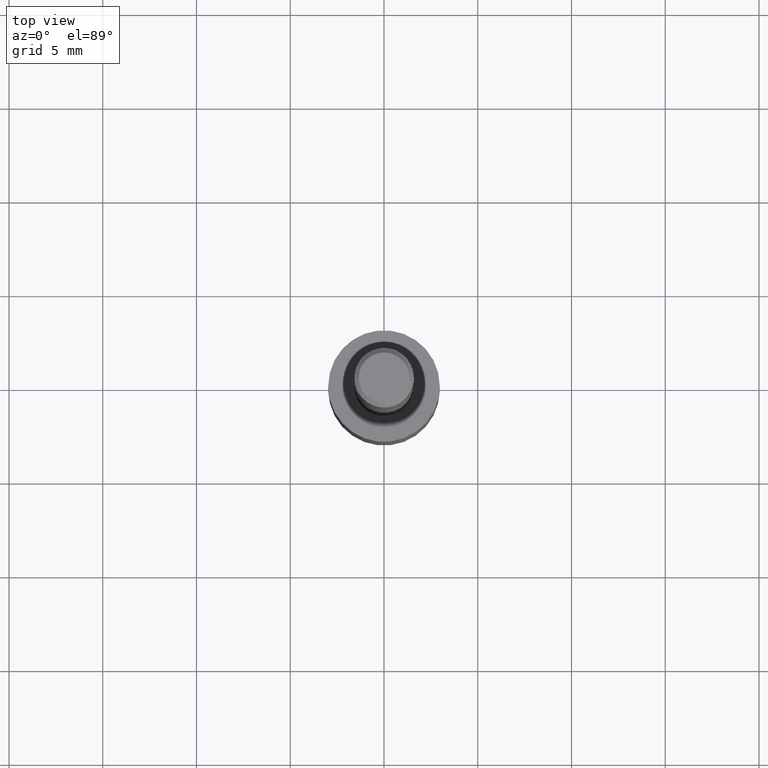
[diagram: clean part render]
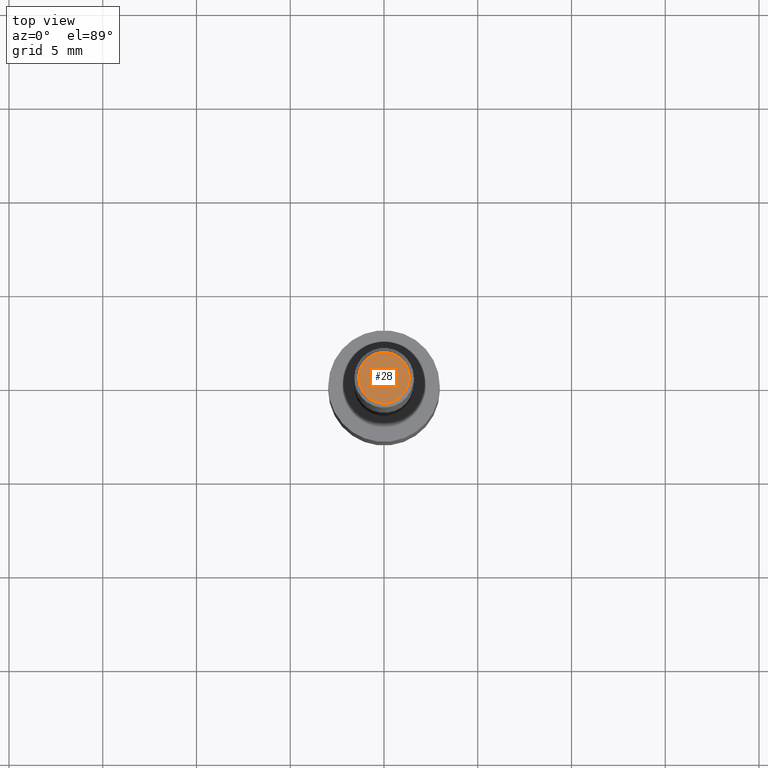
[diagram: same view with one face highlighted and labeled with its STEP entity id]
A machine part, top view. The second image highlights one B-rep face of the part: STEP entity #28.
In plain terms, the highlighted planar face has unit normal (0, -0, -1).
Its self-contained STEP definition (entity closure, byte-faithful):
#28 = ADVANCED_FACE ( 'NONE', ( #247 ), #198, .F. ) ;
#34 = DIRECTION ( 'NONE',  ( -2.445468806185136597E-29, 3.491481338843145583E-15, 1.000000000000000000 ) ) ;
#53 = CARTESIAN_POINT ( 'NONE',  ( -7.487088864773345706E-50, 1.068957861474247695E-35, 3.061616997868395197E-21 ) ) ;
#65 = DIRECTION ( 'NONE',  ( 2.438088387897960049E-29, -3.491481338843145188E-15, -1.000000000000000000 ) ) ;
#69 = CIRCLE ( 'NONE', #237, 0.05312499999999999861 ) ;
#79 = CIRCLE ( 'NONE', #312, 0.05312499999999999861 ) ;
#82 = EDGE_CURVE ( 'NONE', #135, #132, #69, .T. ) ;
#84 = DIRECTION ( 'NONE',  ( 1.000000000000000000, -6.982962677686266711E-15, 4.876176628004948512E-29 ) ) ;
#132 = VERTEX_POINT ( 'NONE', #141 ) ;
#135 = VERTEX_POINT ( 'NONE', #289 ) ;
#141 = CARTESIAN_POINT ( 'NONE',  ( -0.05312499999999999861, 3.873362110279099094E-16, 3.061616995216862494E-21 ) ) ;
#168 = EDGE_CURVE ( 'NONE', #132, #135, #79, .T. ) ;
#178 = ORIENTED_EDGE ( 'NONE', *, *, #82, .T. ) ;
#198 = PLANE ( 'NONE',  #215 ) ;
#214 = DIRECTION ( 'NONE',  ( -1.000000000000000000, 6.982962677686265922E-15, -4.876176775795935793E-29 ) ) ;
#215 = AXIS2_PLACEMENT_3D ( 'NONE', #252, #65, #214 ) ;
#228 = EDGE_LOOP ( 'NONE', ( #234, #178 ) ) ;
#234 = ORIENTED_EDGE ( 'NONE', *, *, #168, .T. ) ;
#237 = AXIS2_PLACEMENT_3D ( 'NONE', #53, #34, #337 ) ;
#240 = CARTESIAN_POINT ( 'NONE',  ( -7.487088864773345706E-50, 1.068957861474247695E-35, 3.061616997868395197E-21 ) ) ;
#247 = FACE_OUTER_BOUND ( 'NONE', #228, .T. ) ;
#252 = CARTESIAN_POINT ( 'NONE',  ( -3.743544432386672853E-50, 5.344789307371238476E-36, 1.530808498934197599E-21 ) ) ;
#287 = DIRECTION ( 'NONE',  ( -2.445468806185136597E-29, 3.491481338843145583E-15, 1.000000000000000000 ) ) ;
#289 = CARTESIAN_POINT ( 'NONE',  ( 0.05312499999999999861, -4.129888592719939842E-16, 3.061617000609493422E-21 ) ) ;
#312 = AXIS2_PLACEMENT_3D ( 'NONE', #240, #287, #84 ) ;
#337 = DIRECTION ( 'NONE',  ( 1.000000000000000000, -6.982962677686266711E-15, 4.876176628004948512E-29 ) ) ;